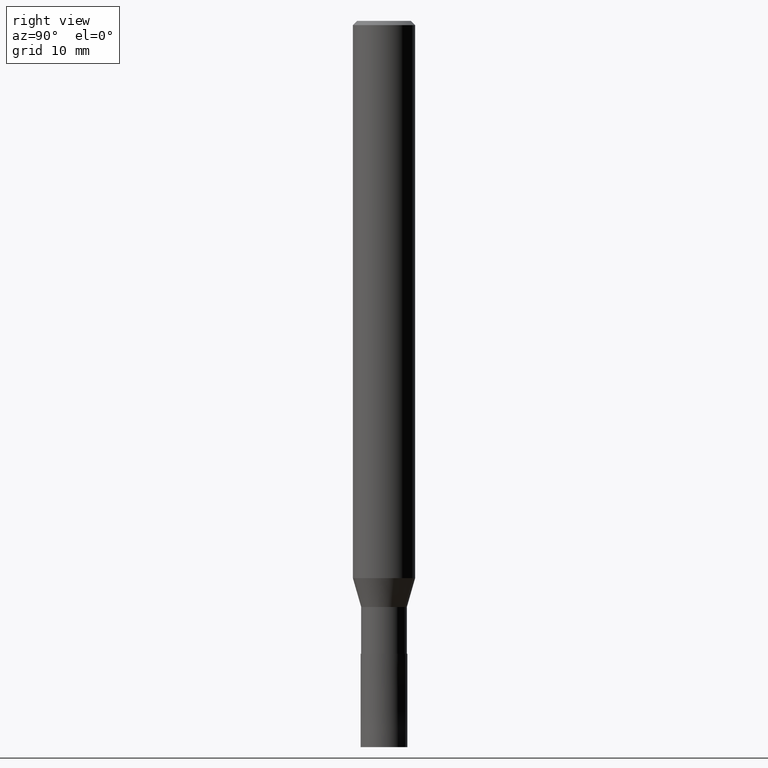
[diagram: clean part render]
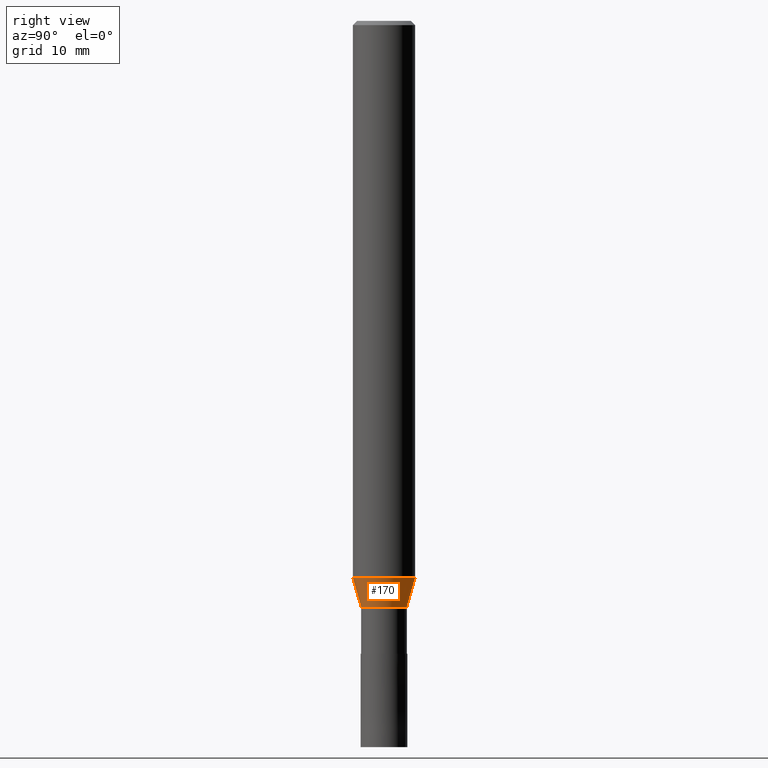
[diagram: same view with one face highlighted and labeled with its STEP entity id]
A machine part, right view. The second image highlights one B-rep face of the part: STEP entity #170.
In plain terms, the highlighted conical surface has half-angle 16 deg.
Its self-contained STEP definition (entity closure, byte-faithful):
#104=VERTEX_POINT('',#241);
#112=EDGE_CURVE('',#198,#178,#250,.T.);
#130=EDGE_CURVE('',#178,#204,#270,.T.);
#152=EDGE_CURVE('',#198,#104,#295,.T.);
#170=ADVANCED_FACE('',(#315),#316,.T.);
#178=VERTEX_POINT('',#325);
#182=EDGE_CURVE('',#204,#104,#329,.T.);
#198=VERTEX_POINT('',#349);
#204=VERTEX_POINT('',#356);
#241=CARTESIAN_POINT('',(3.67375783114944E-016,-2.99995,-53.71));
#250=LINE('',#403,#404);
#270=CIRCLE('',#430,2.19995);
#295=CIRCLE('',#459,2.99995);
#315=FACE_OUTER_BOUND('',#486,.T.);
#316=CONICAL_SURFACE('',#487,2.59995,0.279246180255813);
#325=CARTESIAN_POINT('',(0.0,2.19995,-56.5));
#329=LINE('',#504,#505);
#349=CARTESIAN_POINT('',(0.0,2.99995,-53.71));
#356=CARTESIAN_POINT('',(2.69407274809154E-016,-2.19995,-56.5));
#403=CARTESIAN_POINT('',(-3.18391528962049E-016,2.59995,-55.105));
#404=VECTOR('',#563,1.0);
#430=AXIS2_PLACEMENT_3D('',#588,#589,#590);
#459=AXIS2_PLACEMENT_3D('',#617,#618,#619);
#486=EDGE_LOOP('',(#646,#647,#648,#649));
#487=AXIS2_PLACEMENT_3D('',#650,#651,#652);
#504=CARTESIAN_POINT('',(3.18391528962049E-016,-2.59995,-55.105));
#505=VECTOR('',#665,1.0);
#563=DIRECTION('',(3.37539605616001E-017,-0.275631107549324,-0.961263487578267));
#588=CARTESIAN_POINT('',(0.0,0.0,-56.5));
#589=DIRECTION('',(0.0,0.0,-1.0));
#590=DIRECTION('',(0.0,1.0,0.0));
#617=CARTESIAN_POINT('',(0.0,0.0,-53.71));
#618=DIRECTION('',(0.0,0.0,-1.0));
#619=DIRECTION('',(0.0,1.0,0.0));
#646=ORIENTED_EDGE('',*,*,#112,.F.);
#647=ORIENTED_EDGE('',*,*,#152,.T.);
#648=ORIENTED_EDGE('',*,*,#182,.F.);
#649=ORIENTED_EDGE('',*,*,#130,.F.);
#650=CARTESIAN_POINT('',(0.0,0.0,-55.105));
#651=DIRECTION('',(-0.0,-0.0,1.0));
#652=DIRECTION('',(0.0,1.0,0.0));
#665=DIRECTION('',(3.37539605616001E-017,-0.275631107549324,0.961263487578267));